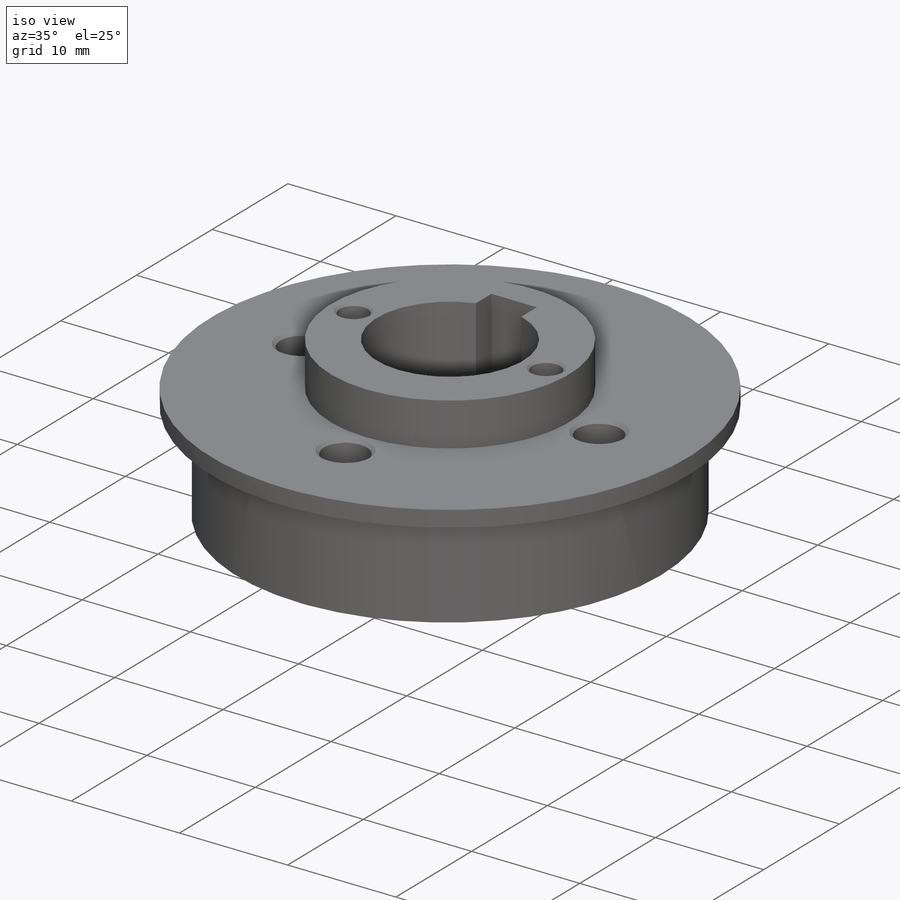
[diagram: iso view]
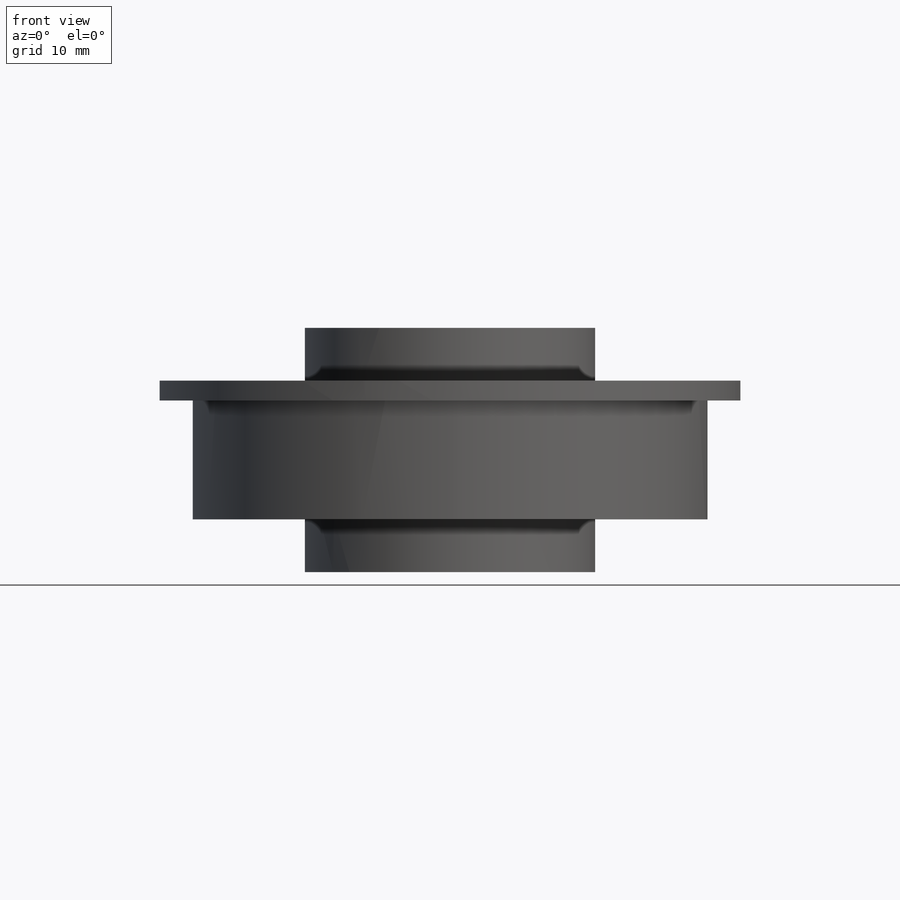
[diagram: front view]
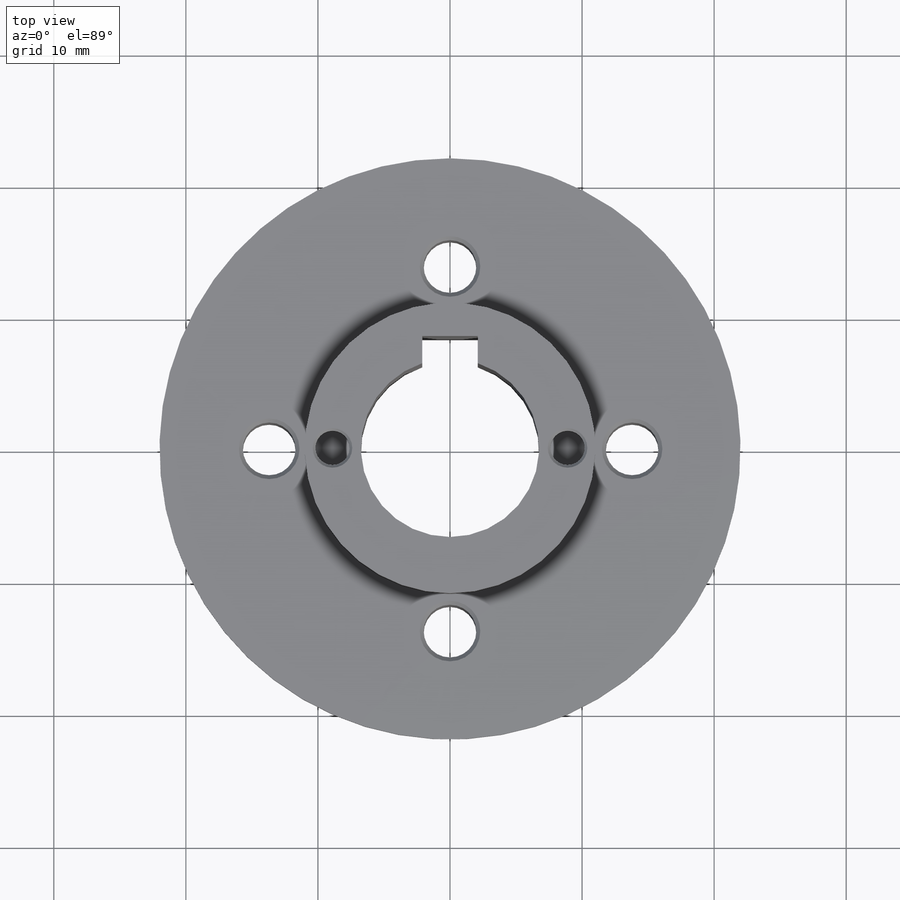
[diagram: top view]
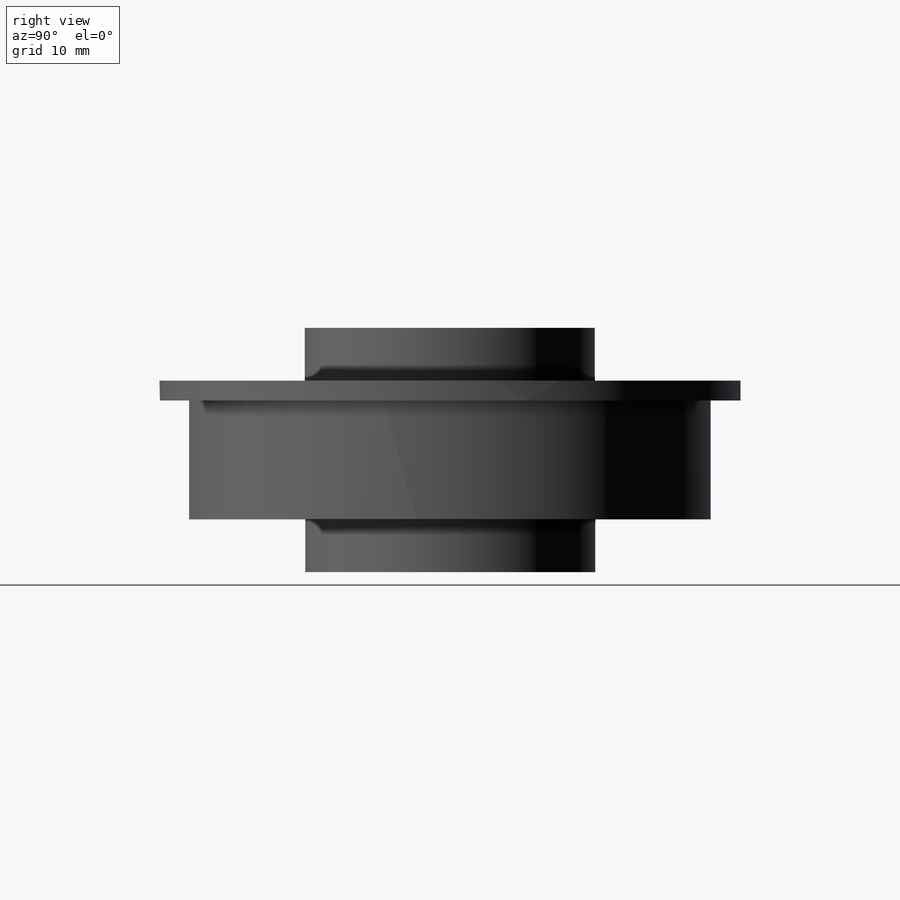
[diagram: right view]
SOLIDWORKS PART (.sldprt)
format: sldprt  version: not decoded by parser v0  size: 340,480 bytes
history: native  units: mm
features: sketch x8, thread x6, cut_extrude x5, plane x3, chamfer x2, material x1, extrude x1, hole x1 (+9 scaffold rows collapsed)
feature tree (36):
  scaffold x9  (default folders/planes/origin — collapsed)
  material  "材质 <未指定>"
  plane  "前视基准面"
  plane  "上视基准面"
  plane  "右视基准面"
  sketch  "草图1"  dims[D1=~56.61916mm]
  extrude  "凸台-拉伸1"  Depth=18.5mm
  sketch  "草图2"  dims[D1=~9.748762mm]
  cut_extrude  "切除-拉伸1"  Depth=4mm
  sketch  "草图4"  dims[D1=19.75mm]
  cut_extrude  "切除-拉伸2"  Depth=13mm
  sketch  "草图5"  dims[D1=22.0mm]
  cut_extrude  "切除-拉伸3"  Depth=4mm
  sketch  "草图6"  dims[D1=14.0mm]
  cut_extrude  "切除-拉伸4"  [1 undecoded]
  hole  "#1 螺旋的螺纹孔钻头1"  [1 undecoded]
  sketch  "草图31"
  sketch  "草图32"  dims[hole-wizard template sketch: 59 standard entries collapsed; hole parameters kept: c18.通孔孔直径=3.9878mm c18.通孔孔深度=14.5mm]
  thread  "装饰螺纹线1"  Diameter=4.1mm  [1 undecoded]
  thread  "装饰螺纹线2"  Diameter=4.1mm  [1 undecoded]
  thread  "装饰螺纹线3"  Diameter=4.1mm  [1 undecoded]
  thread  "装饰螺纹线4"  Diameter=4.1mm  [1 undecoded]
  sketch  "草图33"  dims[D1=~1.80287mm]
  cut_extrude  "切除-拉伸5"  [1 undecoded]
  thread  "装饰螺纹线5"  Diameter=7.8mm  [1 undecoded]
  thread  "装饰螺纹线6"  Diameter=7.8mm  [1 undecoded]
  chamfer  "倒角1"  Distance=0.3mm Angle=45deg
  chamfer  "倒角2"  Distance=0.2mm Angle=45deg
decode coverage: 19 of 23 modeling features carry decoded parameters
note: ~ marks probable driven/reference dimensions
note: 9 parameter values undecoded
summary: no parameter record found for 3 features
note: suppression state not decoded; provenance and decode notes live in map.json
